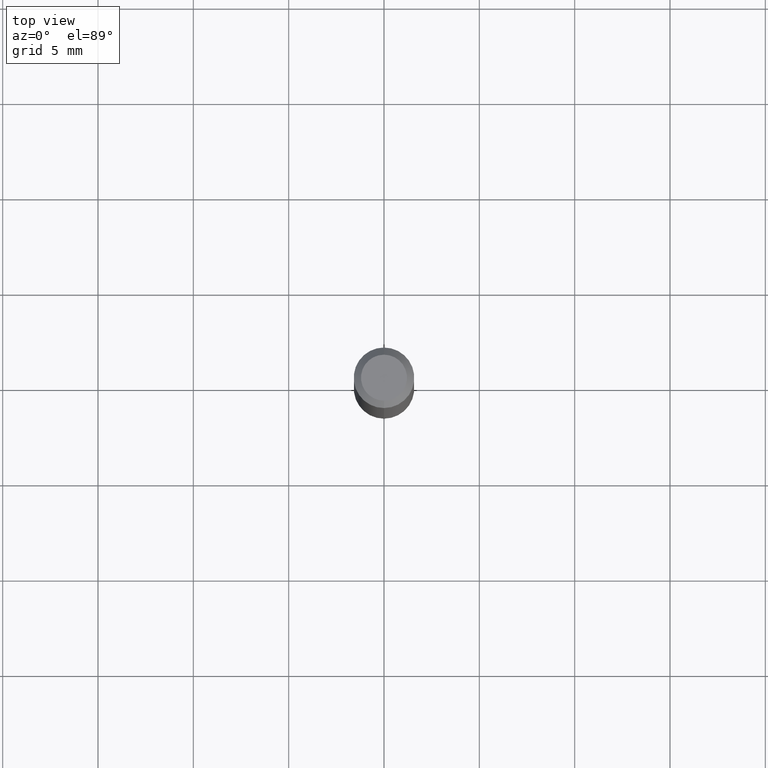
[diagram: clean part render]
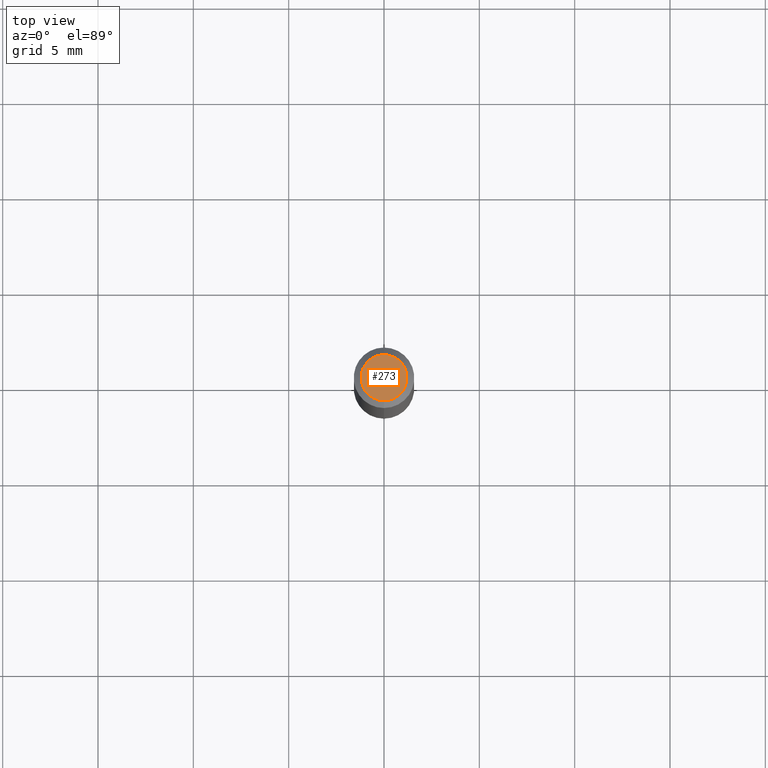
[diagram: same view with one face highlighted and labeled with its STEP entity id]
A machine part, top view. The second image highlights one B-rep face of the part: STEP entity #273.
In plain terms, the highlighted planar face has unit normal (0, -0, -1).
Its self-contained STEP definition (entity closure, byte-faithful):
#18 = AXIS2_PLACEMENT_3D ( 'NONE', #384, #31, #443 ) ;
#31 = DIRECTION ( 'NONE',  ( -2.446180720103943212E-29, 3.490461837591790659E-15, 1.000000000000000000 ) ) ;
#126 = EDGE_CURVE ( 'NONE', #139, #454, #366, .T. ) ;
#139 = VERTEX_POINT ( 'NONE', #318 ) ;
#156 = CARTESIAN_POINT ( 'NONE',  ( 3.840629472727447874E-16, 0.04749999999999999362, -1.747056831868805136E-16 ) ) ;
#225 = DIRECTION ( 'NONE',  ( -6.982962677686266711E-15, -1.000000000000000000, 3.490461837591791053E-15 ) ) ;
#253 = FACE_OUTER_BOUND ( 'NONE', #487, .T. ) ;
#269 = AXIS2_PLACEMENT_3D ( 'NONE', #380, #302, #405 ) ;
#273 = ADVANCED_FACE ( 'NONE', ( #253 ), #335, .F. ) ;
#302 = DIRECTION ( 'NONE',  ( 2.446180720103942932E-29, -3.490461837591790659E-15, -1.000000000000000000 ) ) ;
#318 = CARTESIAN_POINT ( 'NONE',  ( -3.773273898774340269E-16, -0.04749999999999999362, 1.568881913843395871E-16 ) ) ;
#335 = PLANE ( 'NONE',  #269 ) ;
#352 = AXIS2_PLACEMENT_3D ( 'NONE', #498, #420, #225 ) ;
#366 = CIRCLE ( 'NONE', #18, 0.04749999999999999362 ) ;
#380 = CARTESIAN_POINT ( 'NONE',  ( 3.316907271900976096E-16, 0.04749999999999999362, -1.702513102362452697E-16 ) ) ;
#384 = CARTESIAN_POINT ( 'NONE',  ( 2.179240246399283685E-46, -3.109563758918684453E-32, -8.908745901270464794E-18 ) ) ;
#396 = EDGE_CURVE ( 'NONE', #454, #139, #407, .T. ) ;
#405 = DIRECTION ( 'NONE',  ( 6.982962677686265922E-15, 1.000000000000000000, -3.490461837591790659E-15 ) ) ;
#407 = CIRCLE ( 'NONE', #352, 0.04749999999999999362 ) ;
#420 = DIRECTION ( 'NONE',  ( -2.446180720103943212E-29, 3.490461837591790659E-15, 1.000000000000000000 ) ) ;
#443 = DIRECTION ( 'NONE',  ( -6.982962677686266711E-15, -1.000000000000000000, 3.490461837591791053E-15 ) ) ;
#449 = ORIENTED_EDGE ( 'NONE', *, *, #126, .T. ) ;
#454 = VERTEX_POINT ( 'NONE', #156 ) ;
#473 = ORIENTED_EDGE ( 'NONE', *, *, #396, .T. ) ;
#487 = EDGE_LOOP ( 'NONE', ( #473, #449 ) ) ;
#498 = CARTESIAN_POINT ( 'NONE',  ( 2.179240246399283685E-46, -3.109563758918684453E-32, -8.908745901270464794E-18 ) ) ;